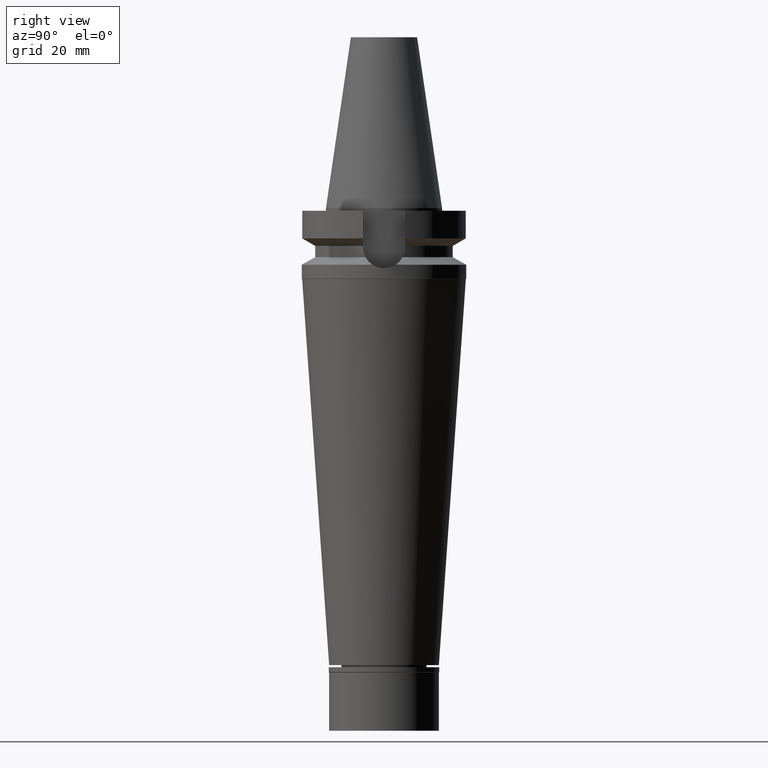
[diagram: clean part render]
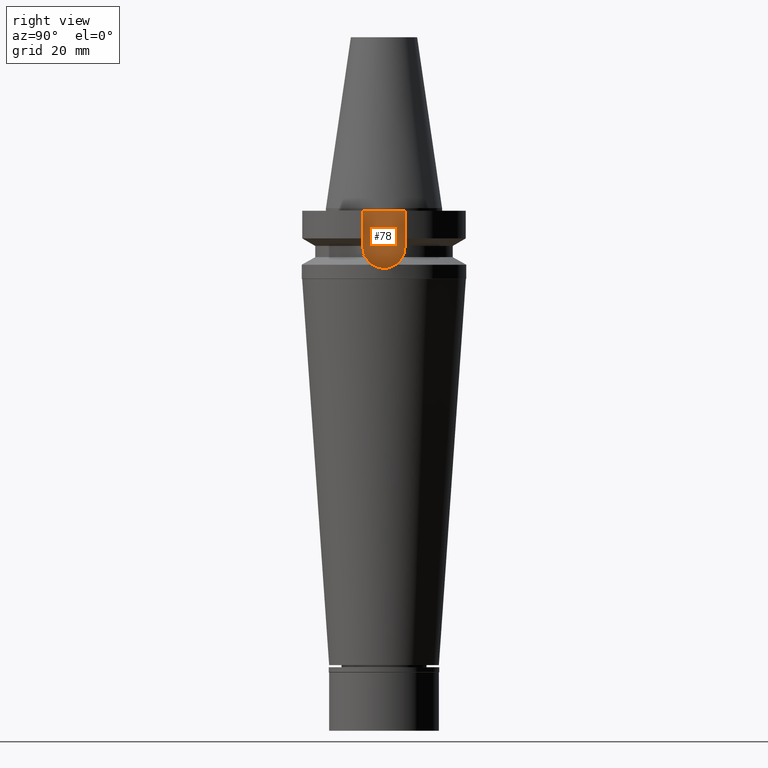
[diagram: same view with one face highlighted and labeled with its STEP entity id]
A machine part, right view. The second image highlights one B-rep face of the part: STEP entity #78.
In plain terms, the highlighted planar face has unit normal (1, 0, 0).
Its self-contained STEP definition (entity closure, byte-faithful):
#78 = ADVANCED_FACE ( 'NONE', ( #839 ), #2815, .T. ) ;
#105 = CARTESIAN_POINT ( 'NONE',  ( 22.50000000000000000, 8.050000000000000711, -14.94999999999999929 ) ) ;
#203 = LINE ( 'NONE', #3107, #2501 ) ;
#219 = LINE ( 'NONE', #2374, #644 ) ;
#237 = VERTEX_POINT ( 'NONE', #2322 ) ;
#262 = CARTESIAN_POINT ( 'NONE',  ( 22.50000000000000000, -8.050000000000000711, -14.94999999999999929 ) ) ;
#288 = ORIENTED_EDGE ( 'NONE', *, *, #809, .F. ) ;
#318 = ORIENTED_EDGE ( 'NONE', *, *, #1701, .F. ) ;
#394 = EDGE_CURVE ( 'NONE', #1815, #2975, #1908, .T. ) ;
#423 = DIRECTION ( 'NONE',  ( 0.0000000000000000000, 0.0000000000000000000, 1.000000000000000000 ) ) ;
#542 = EDGE_LOOP ( 'NONE', ( #1866, #318, #288, #2889 ) ) ;
#616 = CARTESIAN_POINT ( 'NONE',  ( 22.50000000000000000, 0.0000000000000000000, 0.0000000000000000000 ) ) ;
#644 = VECTOR ( 'NONE', #1175, 1000.000000000000000 ) ;
#809 = EDGE_CURVE ( 'NONE', #237, #937, #203, .T. ) ;
#839 = FACE_OUTER_BOUND ( 'NONE', #542, .T. ) ;
#893 = AXIS2_PLACEMENT_3D ( 'NONE', #1611, #1104, #3029 ) ;
#937 = VERTEX_POINT ( 'NONE', #105 ) ;
#940 = DIRECTION ( 'NONE',  ( 0.0000000000000000000, 0.0000000000000000000, -1.000000000000000000 ) ) ;
#1104 = DIRECTION ( 'NONE',  ( -1.000000000000000000, 0.0000000000000000000, 0.0000000000000000000 ) ) ;
#1175 = DIRECTION ( 'NONE',  ( 0.0000000000000000000, -1.000000000000000000, 0.0000000000000000000 ) ) ;
#1611 = CARTESIAN_POINT ( 'NONE',  ( 22.50000000000000000, 0.0000000000000000000, -14.94999999999999929 ) ) ;
#1701 = EDGE_CURVE ( 'NONE', #937, #1815, #3111, .T. ) ;
#1815 = VERTEX_POINT ( 'NONE', #262 ) ;
#1866 = ORIENTED_EDGE ( 'NONE', *, *, #394, .F. ) ;
#1908 = LINE ( 'NONE', #3086, #3099 ) ;
#2322 = CARTESIAN_POINT ( 'NONE',  ( 22.50000000000000000, 8.050000000000000711, -1.000000000000000000 ) ) ;
#2374 = CARTESIAN_POINT ( 'NONE',  ( 22.50000000000000000, 8.050000000000000711, -1.000000000000000000 ) ) ;
#2501 = VECTOR ( 'NONE', #940, 1000.000000000000000 ) ;
#2815 = PLANE ( 'NONE',  #2944 ) ;
#2889 = ORIENTED_EDGE ( 'NONE', *, *, #3083, .T. ) ;
#2944 = AXIS2_PLACEMENT_3D ( 'NONE', #616, #3037, #2987 ) ;
#2975 = VERTEX_POINT ( 'NONE', #3139 ) ;
#2987 = DIRECTION ( 'NONE',  ( 0.0000000000000000000, 1.000000000000000000, 0.0000000000000000000 ) ) ;
#3029 = DIRECTION ( 'NONE',  ( 0.0000000000000000000, 0.0000000000000000000, -1.000000000000000000 ) ) ;
#3037 = DIRECTION ( 'NONE',  ( 1.000000000000000000, 0.0000000000000000000, 0.0000000000000000000 ) ) ;
#3083 = EDGE_CURVE ( 'NONE', #237, #2975, #219, .T. ) ;
#3086 = CARTESIAN_POINT ( 'NONE',  ( 22.50000000000000000, -8.050000000000000711, -14.94999999999999929 ) ) ;
#3099 = VECTOR ( 'NONE', #423, 1000.000000000000000 ) ;
#3107 = CARTESIAN_POINT ( 'NONE',  ( 22.50000000000000000, 8.050000000000000711, -1.000000000000000000 ) ) ;
#3111 = CIRCLE ( 'NONE', #893, 8.050000000000000711 ) ;
#3139 = CARTESIAN_POINT ( 'NONE',  ( 22.50000000000000000, -8.050000000000000711, -1.000000000000000000 ) ) ;